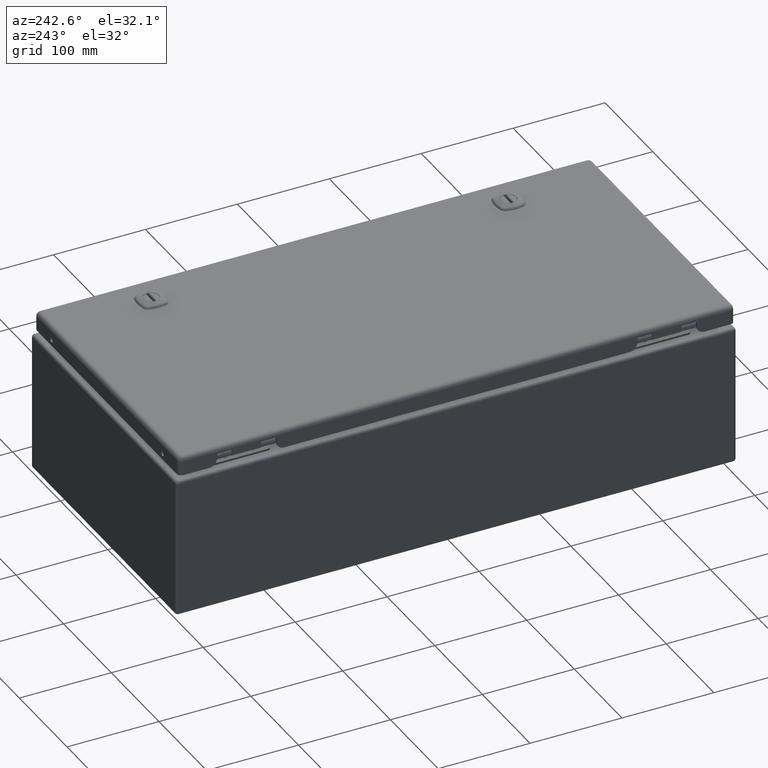
[diagram: clean part render]
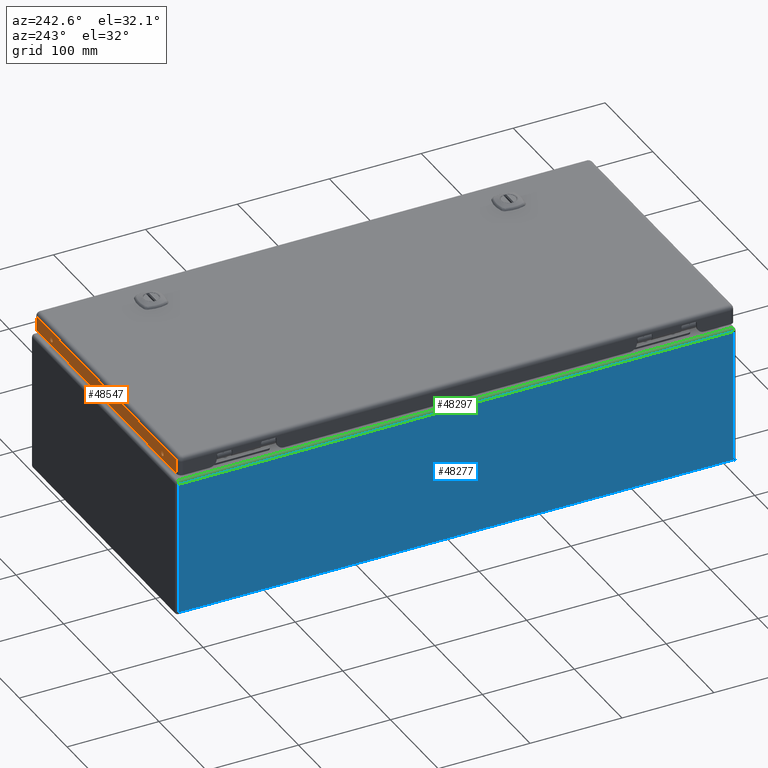
[diagram: same view with three faces highlighted in distinct colors, each labeled with its STEP entity id]
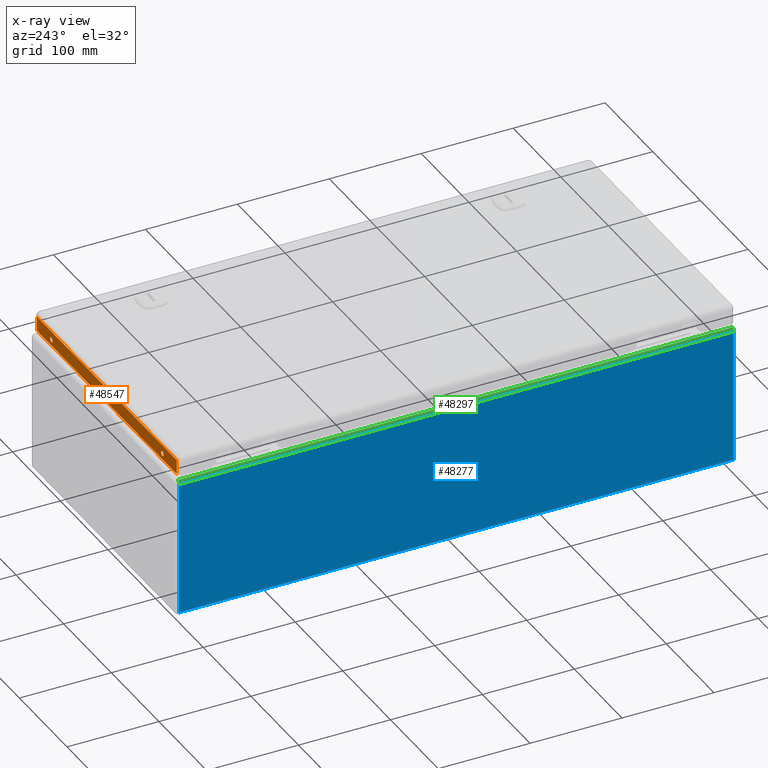
[diagram: x-ray of the same camera — body ghosted, the three highlighted faces saturated]
A machine part, auxiliary view with three faces highlighted in distinct colors.
The next image is the same camera in x-ray (body ghosted, the three faces saturated) — at least one of them is partly hidden behind the body in this view.
Their STEP definitions:

[orange] entity #48547 — the highlighted planar face has unit normal (0, 1, -0).
#3060=FACE_BOUND('',#15560,.T.);
#3061=FACE_BOUND('',#15561,.T.);
#4384=LINE('',#73131,#8209);
#4414=LINE('',#73276,#8239);
#4420=LINE('',#73302,#8245);
#4440=LINE('',#73377,#8265);
#8209=VECTOR('',#57509,0.393700787401575);
#8239=VECTOR('',#57613,0.393700787401575);
#8245=VECTOR('',#57651,0.393700787401575);
#8265=VECTOR('',#57749,0.393700787401575);
#12615=FACE_OUTER_BOUND('',#15559,.T.);
#15559=EDGE_LOOP('',(#33665,#33666,#33667,#33668));
#15560=EDGE_LOOP('',(#33669));
#15561=EDGE_LOOP('',(#33670));
#18538=CIRCLE('',#52382,0.1015);
#18542=CIRCLE('',#52388,0.1015);
#20389=VERTEX_POINT('',#72896);
#20393=VERTEX_POINT('',#72908);
#20459=VERTEX_POINT('',#73128);
#20460=VERTEX_POINT('',#73130);
#20489=VERTEX_POINT('',#73273);
#20490=VERTEX_POINT('',#73275);
#25284=EDGE_CURVE('',#20389,#20389,#18538,.T.);
#25290=EDGE_CURVE('',#20393,#20393,#18542,.T.);
#25379=EDGE_CURVE('',#20459,#20460,#4384,.T.);
#25429=EDGE_CURVE('',#20489,#20490,#4414,.T.);
#25444=EDGE_CURVE('',#20460,#20489,#4420,.T.);
#25480=EDGE_CURVE('',#20490,#20459,#4440,.T.);
#33665=ORIENTED_EDGE('',*,*,#25429,.F.);
#33666=ORIENTED_EDGE('',*,*,#25444,.F.);
#33667=ORIENTED_EDGE('',*,*,#25379,.F.);
#33668=ORIENTED_EDGE('',*,*,#25480,.F.);
#33669=ORIENTED_EDGE('',*,*,#25284,.T.);
#33670=ORIENTED_EDGE('',*,*,#25290,.T.);
#46989=PLANE('',#52531);
#48547=ADVANCED_FACE('',(#12615,#3060,#3061),#46989,.T.);
#52382=AXIS2_PLACEMENT_3D('',#72897,#57337,#57338);
#52388=AXIS2_PLACEMENT_3D('',#72909,#57351,#57352);
#52531=AXIS2_PLACEMENT_3D('',#73378,#57750,#57751);
#57337=DIRECTION('center_axis',(-1.33809638996484E-16,-1.,0.));
#57338=DIRECTION('ref_axis',(-1.,1.37110773281977E-16,0.));
#57351=DIRECTION('center_axis',(-1.33809638996484E-16,-1.,0.));
#57352=DIRECTION('ref_axis',(-1.,1.37110773281977E-16,0.));
#57509=DIRECTION('',(1.,-4.84316541813055E-16,0.));
#57613=DIRECTION('',(-1.,1.33809638996484E-16,0.));
#57651=DIRECTION('',(0.,0.,1.));
#57749=DIRECTION('',(0.,0.,-1.));
#57750=DIRECTION('center_axis',(1.33809638996484E-16,1.,0.));
#57751=DIRECTION('ref_axis',(-1.,1.33809638996484E-16,0.));
#72896=CARTESIAN_POINT('',(-4.4825,11.9015,-0.46));
#72897=CARTESIAN_POINT('Origin',(-4.584,11.9015,-0.46));
#72908=CARTESIAN_POINT('',(4.6855,11.9015,-0.46));
#72909=CARTESIAN_POINT('Origin',(4.584,11.9015,-0.46));
#73128=CARTESIAN_POINT('',(-5.77599999999999,11.9015,-0.71));
#73130=CARTESIAN_POINT('',(5.776,11.9015,-0.71));
#73131=CARTESIAN_POINT('',(5.776,11.9015,-0.71));
#73273=CARTESIAN_POINT('',(5.776,11.9015,-0.093));
#73275=CARTESIAN_POINT('',(-5.77599999999999,11.9015,-0.093));
#73276=CARTESIAN_POINT('',(2.888,11.9015,-0.093));
#73302=CARTESIAN_POINT('',(5.776,11.9015,0.));
#73377=CARTESIAN_POINT('',(-5.77599999999999,11.9015,0.));
#73378=CARTESIAN_POINT('Origin',(5.776,11.9015,0.));

[blue] entity #48277 — the highlighted planar face has unit normal (1, 0, -0).
#4082=LINE('',#68904,#7907);
#4083=LINE('',#68906,#7908);
#4084=LINE('',#68908,#7909);
#4085=LINE('',#68909,#7910);
#7907=VECTOR('',#56417,0.393700787401575);
#7908=VECTOR('',#56418,0.393700787401575);
#7909=VECTOR('',#56419,0.393700787401575);
#7910=VECTOR('',#56420,0.393700787401575);
#12345=FACE_OUTER_BOUND('',#15263,.T.);
#15263=EDGE_LOOP('',(#32303,#32304,#32305,#32306));
#20119=VERTEX_POINT('',#68899);
#20120=VERTEX_POINT('',#68903);
#20121=VERTEX_POINT('',#68905);
#20122=VERTEX_POINT('',#68907);
#24838=EDGE_CURVE('',#20119,#20120,#4082,.T.);
#24839=EDGE_CURVE('',#20121,#20119,#4083,.T.);
#24840=EDGE_CURVE('',#20122,#20121,#4084,.T.);
#24841=EDGE_CURVE('',#20120,#20122,#4085,.T.);
#32303=ORIENTED_EDGE('',*,*,#24838,.F.);
#32304=ORIENTED_EDGE('',*,*,#24839,.F.);
#32305=ORIENTED_EDGE('',*,*,#24840,.F.);
#32306=ORIENTED_EDGE('',*,*,#24841,.F.);
#46895=PLANE('',#52043);
#48277=ADVANCED_FACE('',(#12345),#46895,.F.);
#52043=AXIS2_PLACEMENT_3D('',#68902,#56415,#56416);
#56415=DIRECTION('center_axis',(1.,1.94576067924805E-20,-8.81870860163561E-15));
#56416=DIRECTION('ref_axis',(-8.81870860163561E-15,0.,-1.));
#56417=DIRECTION('',(-1.94576067924805E-20,1.,0.));
#56418=DIRECTION('',(-8.81870860163561E-15,5.39208377136787E-15,-1.));
#56419=DIRECTION('',(1.94576067935201E-20,-1.,1.17883767982698E-16));
#56420=DIRECTION('',(8.81870860163561E-15,5.39208377136787E-15,1.));
#68899=CARTESIAN_POINT('',(-6.,-11.879,0.121000000000001));
#68902=CARTESIAN_POINT('Origin',(-5.99999999999997,0.,3.01678480163049));
#68903=CARTESIAN_POINT('',(-6.,11.879,0.121000000000001));
#68904=CARTESIAN_POINT('',(-6.,-5.83728203774418E-20,0.121000000000001));
#68905=CARTESIAN_POINT('',(-5.99999999999995,-11.879,5.87900000013054));
#68906=CARTESIAN_POINT('',(-5.99999999999997,-11.879,3.01678480163049));
#68907=CARTESIAN_POINT('',(-5.99999999999995,11.879,5.87900000013054));
#68908=CARTESIAN_POINT('',(-5.99999999999995,3.37523103639174E-16,5.87900000013054));
#68909=CARTESIAN_POINT('',(-5.99999999999997,11.879,3.01678480163049));

[green] entity #48297 — the highlighted cylindrical surface (edge-blend (fillet) strip) has radius 3.0734 mm, axis along (-0, 1, -0).
#4084=LINE('',#68908,#7909);
#4094=LINE('',#68971,#7919);
#7909=VECTOR('',#56419,0.393700787401575);
#7919=VECTOR('',#56517,0.393700787401575);
#11698=CYLINDRICAL_SURFACE('',#52087,0.121);
#12365=FACE_OUTER_BOUND('',#15287,.T.);
#15287=EDGE_LOOP('',(#32379,#32380,#32381,#32382));
#18419=CIRCLE('',#52086,0.121);
#18420=CIRCLE('',#52088,0.121);
#20121=VERTEX_POINT('',#68905);
#20122=VERTEX_POINT('',#68907);
#20130=VERTEX_POINT('',#68963);
#20131=VERTEX_POINT('',#68967);
#24840=EDGE_CURVE('',#20122,#20121,#4084,.T.);
#24873=EDGE_CURVE('',#20131,#20121,#18419,.T.);
#24874=EDGE_CURVE('',#20131,#20130,#4094,.T.);
#24875=EDGE_CURVE('',#20122,#20130,#18420,.T.);
#32379=ORIENTED_EDGE('',*,*,#24873,.F.);
#32380=ORIENTED_EDGE('',*,*,#24874,.T.);
#32381=ORIENTED_EDGE('',*,*,#24875,.F.);
#32382=ORIENTED_EDGE('',*,*,#24840,.T.);
#48297=ADVANCED_FACE('',(#12365),#11698,.T.);
#52086=AXIS2_PLACEMENT_3D('',#68969,#56513,#56514);
#52087=AXIS2_PLACEMENT_3D('',#68970,#56515,#56516);
#52088=AXIS2_PLACEMENT_3D('',#68972,#56518,#56519);
#56419=DIRECTION('',(1.94576067935201E-20,-1.,1.17883767982698E-16));
#56513=DIRECTION('center_axis',(1.94576067935201E-20,-1.,1.17883767982698E-16));
#56514=DIRECTION('ref_axis',(-1.,0.,1.15595551467447E-14));
#56515=DIRECTION('center_axis',(-1.94576067935201E-20,1.,-1.17883767982698E-16));
#56516=DIRECTION('ref_axis',(-1.,0.,1.4086757699094E-14));
#56517=DIRECTION('',(-1.94576067935201E-20,1.,-1.17883767982698E-16));
#56518=DIRECTION('center_axis',(-1.94576067935201E-20,1.,-1.17883767982698E-16));
#56519=DIRECTION('ref_axis',(-1.,0.,1.15595551467447E-14));
#68905=CARTESIAN_POINT('',(-5.99999999999995,-11.879,5.87900000013054));
#68907=CARTESIAN_POINT('',(-5.99999999999995,11.879,5.87900000013054));
#68908=CARTESIAN_POINT('',(-5.99999999999995,3.37523103639174E-16,5.87900000013054));
#68963=CARTESIAN_POINT('',(-5.87899999999995,11.879,6.00000000013054));
#68967=CARTESIAN_POINT('',(-5.87899999999995,-11.879,6.00000000013054));
#68969=CARTESIAN_POINT('Origin',(-5.87899999999995,-11.879,5.87900000013054));
#68970=CARTESIAN_POINT('Origin',(-5.87899999999995,0.,5.87900000013054));
#68971=CARTESIAN_POINT('',(-5.87899999999995,3.51789393935502E-16,6.00000000013054));
#68972=CARTESIAN_POINT('Origin',(-5.87899999999995,11.879,5.87900000013054));